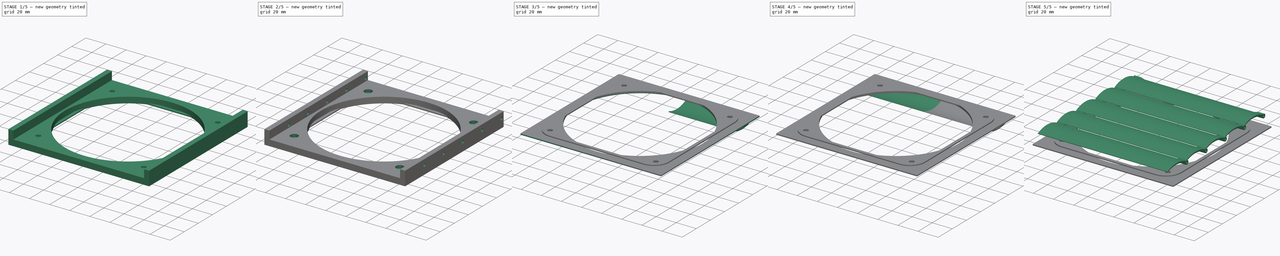
[diagram: build sequence overview — one tinted view per stage of 5, left to right]
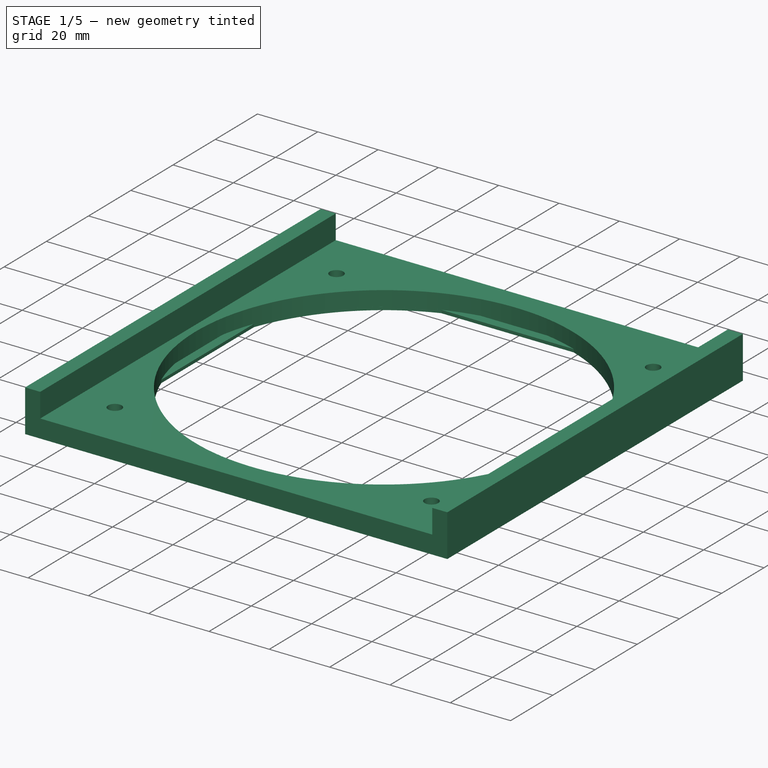
[diagram: stage 1 of 5 — iso view after this stage's code; geometry added in this stage tinted green]
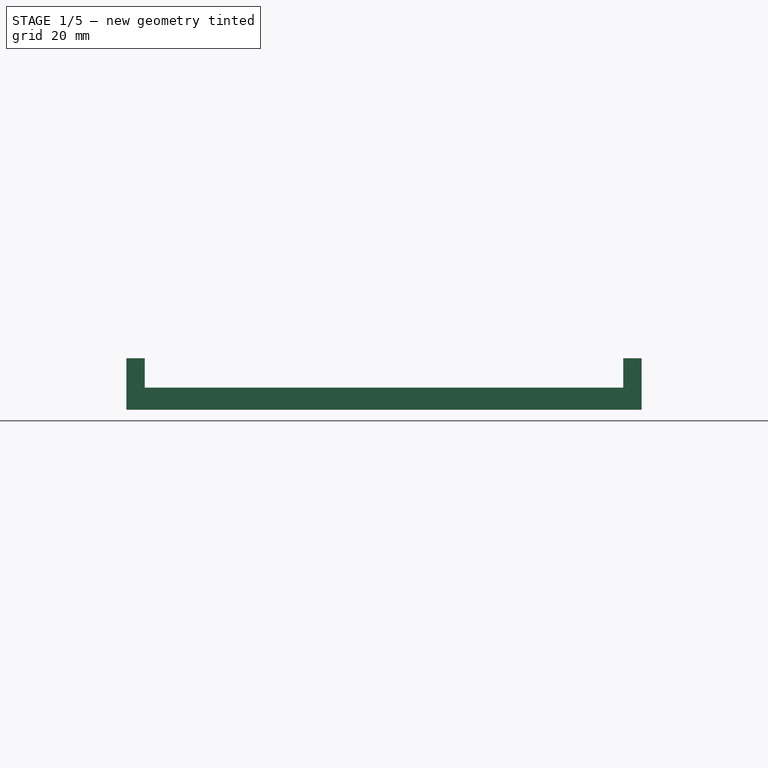
[diagram: stage 1 of 5 — front view after this stage's code; geometry added in this stage tinted green]
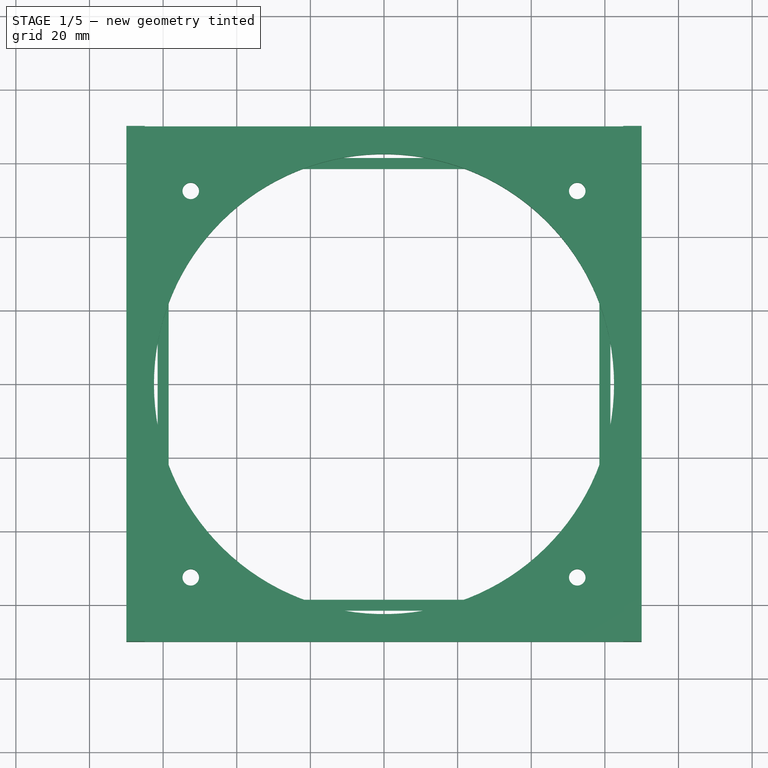
[diagram: stage 1 of 5 — top view after this stage's code; geometry added in this stage tinted green]
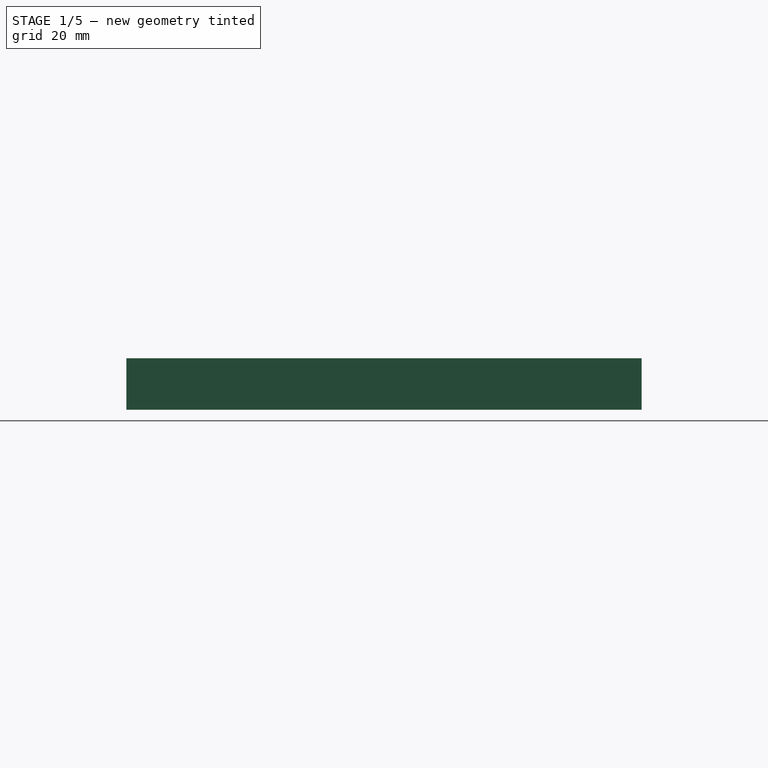
[diagram: stage 1 of 5 — right view after this stage's code; geometry added in this stage tinted green]
FCSTD DOCUMENT  (FreeCAD 0.19R23721 (Git))
Label: fan cover
License: All rights reserved
LicenseURL: http://en.wikipedia.org/wiki/All_rights_reserved
objects: Sketcher::SketchObject×12, PartDesign::Pad×6, PartDesign::ShapeBinder×4, PartDesign::Pocket×4, PartDesign::Body×4, PartDesign::Fillet×2, Spreadsheet::Sheet×1, PartDesign::AdditiveLoft×1, PartDesign::Mirrored×1, Part::FeaturePython×1, PartDesign::LinearPattern×1
note: 48 computed .brp shape members not serialized (recipe doc carries the construction recipe); baked Part::Feature solids carry a one-line shape summary decoded from their .brp

FEATURE [PartDesign::Body] Body001  label="flap"
  Group = -> [Sketch,Pad001,ShapeBinder,Sketch004,Pad002,ShapeBinder001,Sketch005,Sketch006,AdditiveLoft,Mirrored,Sketch007,Pocket,ShapeBinder002,Sketch008,Pocket001]
  Origin = -> Origin001
  Placement = pos=(0,-1.5,7) rot=(0,1,0;3.14159rad)
  Tip = -> Pocket001
  expr: .Placement.Base.y = -<<dim>>.first_wing_y_offset
  expr: .Placement.Base.z = <<dim>>.thickness + <<dim>>.wing_cage_slot_ofs
FEATURE [PartDesign::Pad] Pad
  Direction = (1,1,1)
  Length = 6
  Length2 = 100
  Profile = -> Sketch003
  Refine = true
  Type = 0
  expr: Length = <<dim>>.thickness
FEATURE [Sketcher::SketchObject] Sketch009
  AttachmentOffset = pos=(0,0,6) rot=(0,0,1;0rad)
  ExternalGeometry = -> [Pad]
  FullyConstrained = true
  MapMode = 5
  Placement = pos=(0,0,6) rot=(0,0,1;0rad)
  Support = -> [XY_Plane]
  expr: .AttachmentOffset.Base.z = <<dim>>.thickness
  expr: Constraints[19] = <<dim>>.wing_cage_width
  sketch-geometry (8):
    g0: LineSegment StartX=-70 StartY=70 StartZ=0 EndX=-65 EndY=70 EndZ=0
    g1: LineSegment StartX=-65 StartY=70 StartZ=0 EndX=-65 EndY=-70 EndZ=0
    g2: LineSegment StartX=-65 StartY=-70 StartZ=0 EndX=-70 EndY=-70 EndZ=0
    g3: LineSegment StartX=-70 StartY=-70 StartZ=0 EndX=-70 EndY=70 EndZ=0
    g4: LineSegment StartX=70 StartY=70 StartZ=0 EndX=65 EndY=70 EndZ=0
    g5: LineSegment StartX=65 StartY=70 StartZ=0 EndX=65 EndY=-70 EndZ=0
    g6: LineSegment StartX=65 StartY=-70 StartZ=0 EndX=70 EndY=-70 EndZ=0
    g7: LineSegment StartX=70 StartY=-70 StartZ=0 EndX=70 EndY=70 EndZ=0
  constraints (20):
    c: Coincident(g0,g1)
    c: Coincident(g1,g2)
    c: Coincident(g2,g3)
    c: Coincident(g3,g0)
    c: Horizontal(g0)
    c: Horizontal(g2)
    c: Vertical(g1)
    c: Coincident(g0,g-4)
    c: Coincident(g4,g5)
    c: Coincident(g5,g6)
    c: Coincident(g6,g7)
    c: Coincident(g7,g4)
    c: Horizontal(g4)
    c: Horizontal(g6)
    c: Vertical(g5)
    c: Coincident(g4,g-3)
    c: Coincident(g6,g-3)
    c: Coincident(g2,g-4)
    c: Equal(g4,g0)
    c: DistanceX(g4,g4) = 5
FEATURE [PartDesign::Pad] Pad003
  BaseFeature = -> Pad
  Direction = (1,1,1)
  Length = 8
  Length2 = 100
  Profile = -> Sketch009
  Refine = true
  Type = 0
  expr: Length = <<dim>>.wing_cage_height
FEATURE [PartDesign::Body] Body002  label="frame_washer"
  Group = -> [ShapeBinder003,Sketch012,Pad004]
  Origin = -> Origin002
  Tip = -> Pad004
FEATURE [Sketcher::SketchObject] Sketch013
  FullyConstrained = true
  MapMode = 5
  Support = -> [XY_Plane003]
  expr: Constraints[1] = <<dim>>.fan_d
  expr: Constraints[12] = <<dim>>.fan_frame - <<dim>>.fan_washer_wall
  expr: Constraints[23] = <<dim>>.mount_dist
  expr: Constraints[31] = <<dim>>.mount_d
  expr: Constraints[41] = <<dim>>.fan_frame + <<dim>>.fan_washer_wall
  expr: Constraints[46] = <<dim>>.fan_frame_fillet
  sketch-geometry (41):
    g0: Circle CenterX=0 CenterY=0 CenterZ=0 NormalX=0 NormalY=0 NormalZ=1 AngleXU=0 Radius=62.5
    g1: LineSegment StartX=-58.5 StartY=58.5 StartZ=0 EndX=58.5 EndY=58.5 EndZ=0
    g2: LineSegment StartX=58.5 StartY=58.5 StartZ=0 EndX=58.5 EndY=-58.5 EndZ=0
    g3: LineSegment StartX=58.5 StartY=-58.5 StartZ=0 EndX=-58.5 EndY=-58.5 EndZ=0
    g4: LineSegment StartX=-58.5 StartY=-58.5 StartZ=0 EndX=-58.5 EndY=58.5 EndZ=0
    g5: LineSegment StartX=-52.5 StartY=52.5 StartZ=0 EndX=52.5 EndY=52.5 EndZ=0
    g6: LineSegment StartX=52.5 StartY=52.5 StartZ=0 EndX=52.5 EndY=-52.5 EndZ=0
    g7: LineSegment StartX=52.5 StartY=-52.5 StartZ=0 EndX=-52.5 EndY=-52.5 EndZ=0
    g8: LineSegment StartX=-52.5 StartY=-52.5 StartZ=0 EndX=-52.5 EndY=52.5 EndZ=0
    g9: Circle CenterX=52.5 CenterY=52.5 CenterZ=0 NormalX=0 NormalY=0 NormalZ=1 AngleXU=0 Radius=2.25
    g10: Circle CenterX=-52.5 CenterY=52.5 CenterZ=0 NormalX=0 NormalY=0 NormalZ=1 AngleXU=0 Radius=2.25
    g11: Circle CenterX=-52.5 CenterY=-52.5 CenterZ=0 NormalX=0 NormalY=0 NormalZ=1 AngleXU=0 Radius=2.25
    g12: Circle CenterX=52.5 CenterY=-52.5 CenterZ=0 NormalX=0 NormalY=0 NormalZ=1 AngleXU=0 Radius=2.25
    g13: LineSegment StartX=-61.5 StartY=61.5 StartZ=0 EndX=61.5 EndY=61.5 EndZ=0
    g14: LineSegment StartX=61.5 StartY=61.5 StartZ=0 EndX=61.5 EndY=-61.5 EndZ=0
    g15: LineSegment StartX=61.5 StartY=-61.5 StartZ=0 EndX=-61.5 EndY=-61.5 EndZ=0
    g16: LineSegment StartX=-61.5 StartY=-61.5 StartZ=0 EndX=-61.5 EndY=61.5 EndZ=0
    g17: ArcOfCircle CenterX=46.5 CenterY=46.5 CenterZ=0 NormalX=0 NormalY=0 NormalZ=1 AngleXU=0 Radius=15 StartAngle=0 EndAngle=1.5708
    g18: ArcOfCircle CenterX=46.5 CenterY=-46.5 CenterZ=0 NormalX=0 NormalY=0 NormalZ=1 AngleXU=0 Radius=15 StartAngle=4.71239 EndAngle=6.28319
    g19: ArcOfCircle CenterX=-46.5 CenterY=-46.5 CenterZ=0 NormalX=0 NormalY=0 NormalZ=1 AngleXU=0 Radius=15 StartAngle=3.14159 EndAngle=4.71239
    g20: ArcOfCircle CenterX=-46.5 CenterY=46.5 CenterZ=0 NormalX=0 NormalY=0 NormalZ=1 AngleXU=0 Radius=15 StartAngle=1.5708 EndAngle=3.14159
    g21: GeomPoint X=22 Y=58.5 Z=0
    g22: GeomPoint X=-22 Y=58.5 Z=0
    g23: GeomPoint X=-58.5 Y=22 Z=0
    g24: GeomPoint X=-58.5 Y=-22 Z=0
    g25: GeomPoint X=-22 Y=-58.5 Z=0
    g26: GeomPoint X=22 Y=-58.5 Z=0
    g27: GeomPoint X=58.5 Y=-22 Z=0
    g28: GeomPoint X=58.5 Y=22 Z=0
    g29: ArcOfCircle CenterX=0 CenterY=0 CenterZ=0 NormalX=0 NormalY=0 NormalZ=1 AngleXU=0 Radius=62.5 StartAngle=0.359707 EndAngle=1.21109
    g30: ArcOfCircle CenterX=0 CenterY=0 CenterZ=0 NormalX=0 NormalY=0 NormalZ=1 AngleXU=0 Radius=62.5 StartAngle=5.0721 EndAngle=5.92348
    g31: ArcOfCircle CenterX=0 CenterY=0 CenterZ=0 NormalX=0 NormalY=0 NormalZ=1 AngleXU=0 Radius=62.5 StartAngle=3.5013 EndAngle=4.35268
    g32: ArcOfCircle CenterX=0 CenterY=0 CenterZ=0 NormalX=0 NormalY=0 NormalZ=1 AngleXU=0 Radius=62.5 StartAngle=1.9305 EndAngle=2.78189
    g33: LineSegment StartX=-46.5 StartY=61.5 StartZ=0 EndX=46.5 EndY=61.5 EndZ=0
    g34: LineSegment StartX=-22 StartY=58.5 StartZ=0 EndX=22 EndY=58.5 EndZ=0
    g35: LineSegment StartX=61.5 StartY=46.5 StartZ=0 EndX=61.5 EndY=-46.5 EndZ=0
    g36: LineSegment StartX=58.5 StartY=22 StartZ=0 EndX=58.5 EndY=-22 EndZ=0
    g37: LineSegment StartX=46.5 StartY=-61.5 StartZ=0 EndX=-46.5 EndY=-61.5 EndZ=0
    g38: LineSegment StartX=22 StartY=-58.5 StartZ=0 EndX=-22 EndY=-58.5 EndZ=0
    g39: LineSegment StartX=-61.5 StartY=-46.5 StartZ=0 EndX=-61.5 EndY=46.5 EndZ=0
    g40: LineSegment StartX=-58.5 StartY=22 StartZ=0 EndX=-58.5 EndY=-22 EndZ=0
  constraints (105):
    c: Coincident(g0,g-1)
    c: Diameter(g0) = 125
    c: Coincident(g1,g2)
    c: Coincident(g2,g3)
    c: Coincident(g3,g4)
    c: Coincident(g4,g1)
    c: Horizontal(g1)
    c: Horizontal(g3)
    c: Vertical(g2)
    c: Vertical(g4)
    c: Symmetric(g2,g1,g-1)
    c: Equal(g1,g2)
    c: DistanceX(g1,g1) = 117
    c: Coincident(g5,g6)
    c: Coincident(g6,g7)
    c: Coincident(g7,g8)
    c: Coincident(g8,g5)
    c: Horizontal(g5)
    c: Horizontal(g7)
    c: Vertical(g6)
    c: Vertical(g8)
    c: Equal(g7,g6)
    c: Symmetric(g5,g6,g-1)
    c: DistanceX(g5,g5) = 105
    c: Coincident(g9,g5)
    c: Coincident(g10,g5)
    c: Coincident(g11,g7)
    c: Coincident(g12,g6)
    c: Equal(g12,g11)
    c: Equal(g11,g10)
    c: Equal(g10,g9)
    c: Diameter(g9) = 4.5
    c: Coincident(g13,g14)
    c: Coincident(g14,g15)
    c: Coincident(g15,g16)
    c: Coincident(g16,g13)
    c: Horizontal(g13)
    c: Horizontal(g15)
    c: Vertical(g14)
    c: Vertical(g16)
    c: Equal(g15,g14)
    c: DistanceX(g13,g13) = 123
    c: PointOnObject(g17,g13)
    c: PointOnObject(g17,g14)
    c: Vertical(g17,g17)
    c: Horizontal(g17,g17)
    c: Radius(g17) = 15
    c: PointOnObject(g18,g14)
    c: PointOnObject(g18,g15)
    c: PointOnObject(g19,g15)
    c: PointOnObject(g19,g16)
    c: PointOnObject(g20,g13)
    c: PointOnObject(g20,g16)
    c: Symmetric(g13,g14,g-1)
    c: Horizontal(g18,g18)
    c: Horizontal(g19,g19)
    c: Horizontal(g20,g20)
    c: Vertical(g20,g20)
    c: Vertical(g19,g19)
    c: Vertical(g18,g18)
    c: Equal(g17,g20)
    c: Equal(g20,g19)
    c: Equal(g19,g18)
    c: PointOnObject(g21,g1)
    c: PointOnObject(g22,g1)
    c: PointOnObject(g21,g0)
    c: PointOnObject(g22,g0)
    c: PointOnObject(g23,g4)
    c: PointOnObject(g24,g4)
    c: PointOnObject(g25,g3)
    c: PointOnObject(g26,g3)
    c: PointOnObject(g27,g2)
    c: PointOnObject(g28,g2)
    c: PointOnObject(g27,g0)
    c: PointOnObject(g26,g0)
    c: PointOnObject(g25,g0)
    c: Coincident(g29,g-1)
    c: Coincident(g29,g21)
    c: Coincident(g29,g28)
    c: Coincident(g30,g29)
    c: Coincident(g30,g27)
    c: Coincident(g30,g26)
    c: Coincident(g31,g29)
    c: Coincident(g31,g25)
    c: Coincident(g31,g24)
    c: Coincident(g32,g29)
    c: Coincident(g32,g23)
    c: Coincident(g32,g22)
    c: Coincident(g33,g20)
    c: Coincident(g33,g17)
    c: Coincident(g34,g32)
    c: Coincident(g34,g29)
    c: Coincident(g35,g17)
    c: Coincident(g35,g18)
    c: Coincident(g36,g29)
    c: Coincident(g36,g30)
    c: Coincident(g37,g18)
    c: Coincident(g37,g19)
    c: Coincident(g38,g30)
    c: Coincident(g38,g31)
    c: Horizontal(g38)
    c: Coincident(g39,g19)
    c: Coincident(g39,g20)
    c: Coincident(g40,g32)
    c: Coincident(g40,g31)
FEATURE [PartDesign::Pad] Pad005
  Direction = (1,1,1)
  Length = 1
  Length2 = 100
  Profile = -> Sketch013
  Refine = true
  Type = 0
  expr: Length = <<dim>>.washer_thickness
FEATURE [PartDesign::Body] Body003  label="fan_washer"
  Group = -> [Sketch013,Pad005]
  Origin = -> Origin003
  Tip = -> Pad005
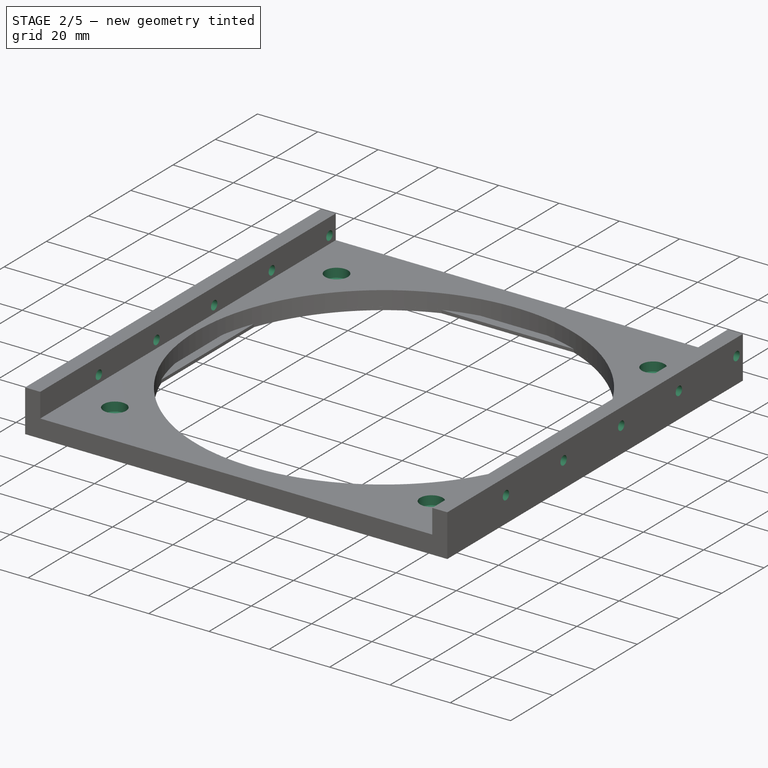
[diagram: stage 2 of 5 — iso view after this stage's code; geometry added in this stage tinted green]
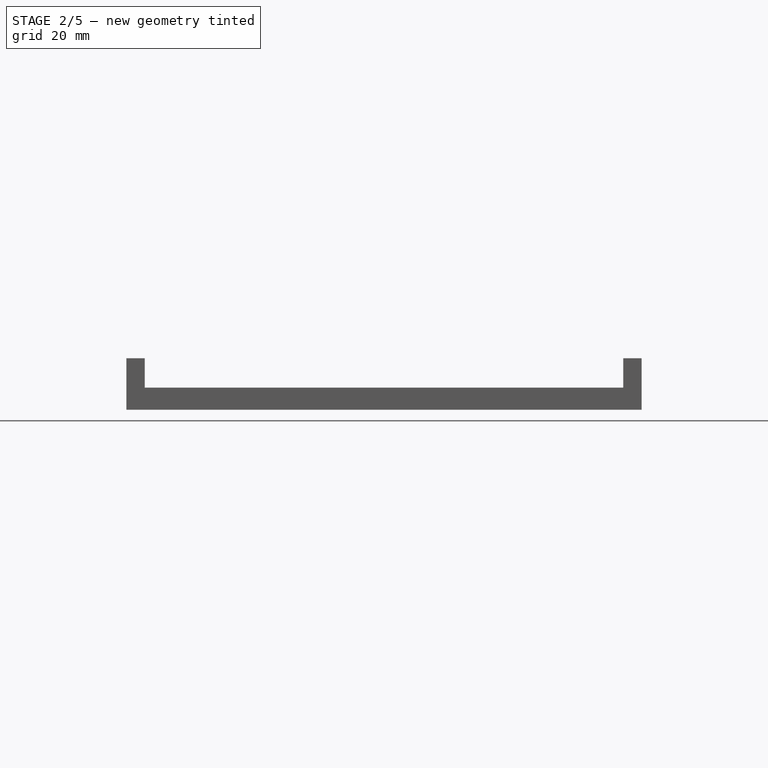
[diagram: stage 2 of 5 — front view after this stage's code; geometry added in this stage tinted green]
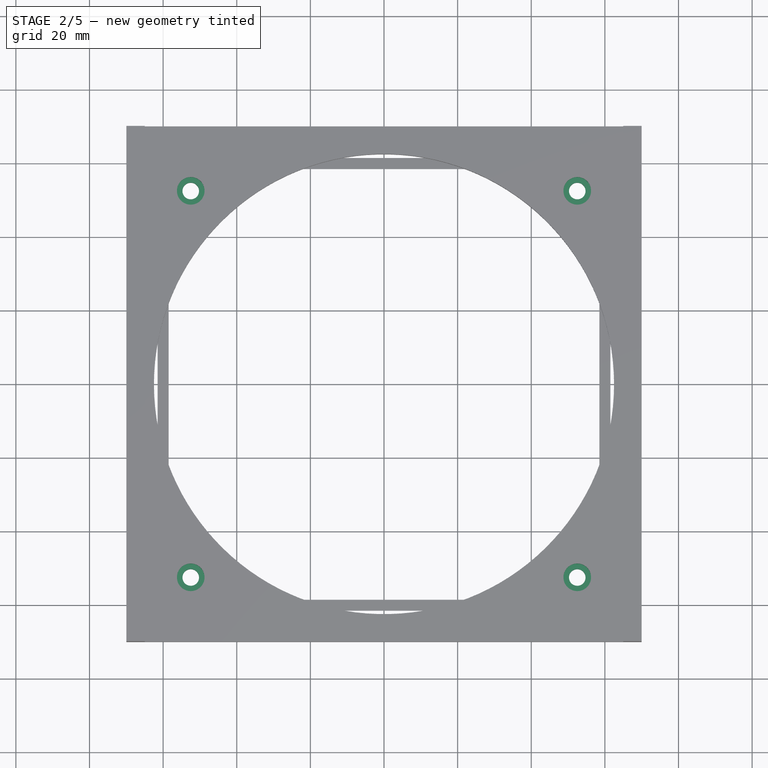
[diagram: stage 2 of 5 — top view after this stage's code; geometry added in this stage tinted green]
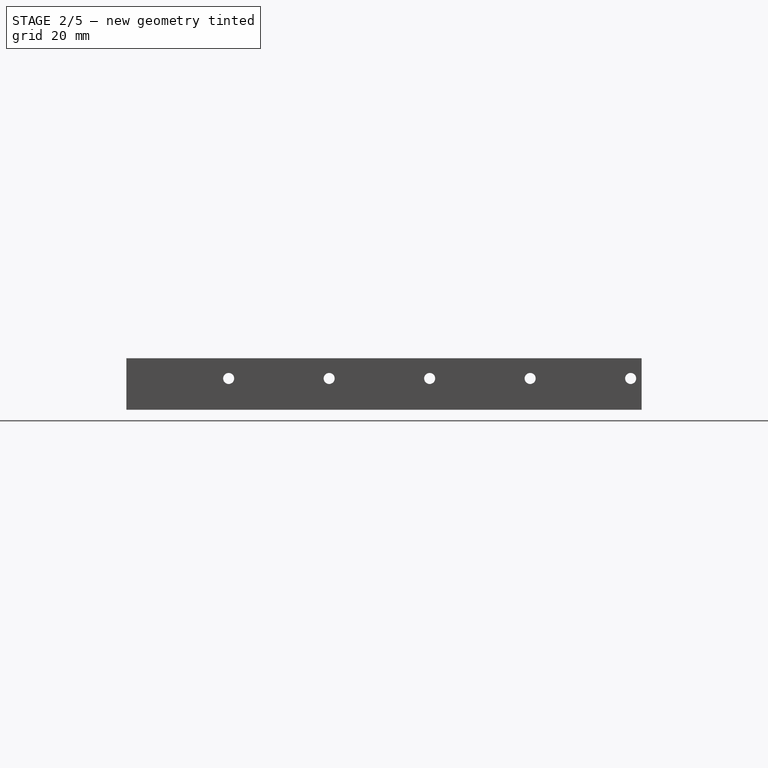
[diagram: stage 2 of 5 — right view after this stage's code; geometry added in this stage tinted green]
FEATURE [Sketcher::SketchObject] Sketch010
  AttachmentOffset = pos=(0,0,6) rot=(0,0,1;0rad)
  ExternalGeometry = -> [Pad003]
  FullyConstrained = true
  MapMode = 5
  Placement = pos=(0,0,6) rot=(0,0,1;0rad)
  Support = -> [XY_Plane]
  expr: .AttachmentOffset.Base.z = <<dim>>.thickness
  expr: Constraints[4] = <<dim>>.mount_countersink_d
  sketch-geometry (4):
    g0: Circle CenterX=52.5 CenterY=52.5 CenterZ=0 NormalX=0 NormalY=0 NormalZ=1 AngleXU=0 Radius=3.75
    g1: Circle CenterX=-52.5 CenterY=52.5 CenterZ=0 NormalX=0 NormalY=0 NormalZ=1 AngleXU=0 Radius=3.75
    g2: Circle CenterX=-52.5 CenterY=-52.5 CenterZ=0 NormalX=0 NormalY=0 NormalZ=1 AngleXU=0 Radius=3.75
    g3: Circle CenterX=52.5 CenterY=-52.5 CenterZ=0 NormalX=0 NormalY=0 NormalZ=1 AngleXU=0 Radius=3.75
  constraints (8):
    c: Coincident(g0,g-3)
    c: Coincident(g1,g-6)
    c: Coincident(g2,g-5)
    c: Coincident(g3,g-4)
    c: Diameter(g0) = 7.5
    c: Equal(g0,g1)
    c: Equal(g1,g2)
    c: Equal(g2,g3)
FEATURE [PartDesign::Pocket] Pocket002
  BaseFeature = -> Pad003
  Length = 3
  Length2 = 100
  Profile = -> Sketch010
  Refine = true
  Type = 0
  expr: Length = <<dim>>.mount_countersink_h
FEATURE [Sketcher::SketchObject] Sketch011
  ExternalGeometry = -> [Pocket002]
  FullyConstrained = true
  MapMode = 5
  Placement = pos=(0,0,0) rot=(0.57735,0.57735,0.57735;2.0944rad)
  Support = -> [YZ_Plane]
  expr: Constraints[0] = <<dim>>.wing_cage_slot_d
  expr: Constraints[1] = <<dim>>.wing_cage_slot_d / 2 + <<dim>>.wing_cage_slot_ofs
  expr: Constraints[2] = <<dim>>.wing_cage_slot_d / 2 + <<dim>>.first_wing_y_offset
  sketch-geometry (1):
    g0: Circle CenterX=67 CenterY=8.5 CenterZ=0 NormalX=0 NormalY=0 NormalZ=1 AngleXU=0 Radius=1.5
  constraints (3):
    c: Diameter(g0) = 3
    c: DistanceY(g-3,g0) = 2.5
    c: DistanceX(g0,g-3) = 3
FEATURE [PartDesign::Pocket] Pocket003
  BaseFeature = -> Pocket002
  Length = 5
  Length2 = 100
  Midplane = true
  Profile = -> Sketch011
  Refine = true
  Type = 1
FEATURE [PartDesign::LinearPattern] LinearPattern
  BaseFeature = -> Pocket003
  Direction = -> Sketch011 [H_Axis]
  Length = 109.2
  Occurrences = 5
  Originals = -> [Pocket003]
  Refine = true
  Reversed = true
  expr: Occurrences = <<dim>>.num_wings
  expr: Length = (<<dim>>.num_wings - 1) * <<dim>>.wing_h
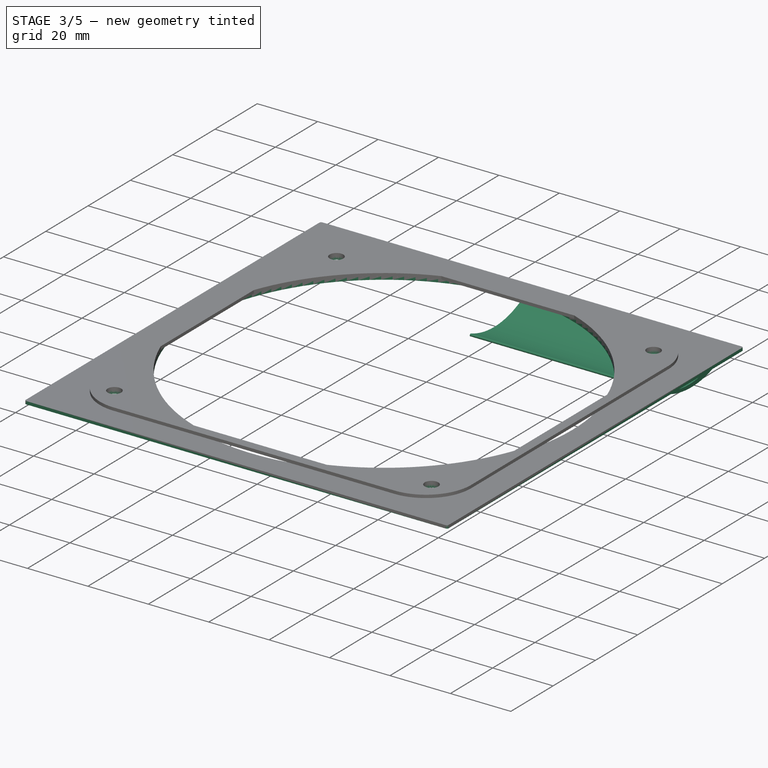
[diagram: stage 3 of 5 — iso view after this stage's code; geometry added in this stage tinted green]
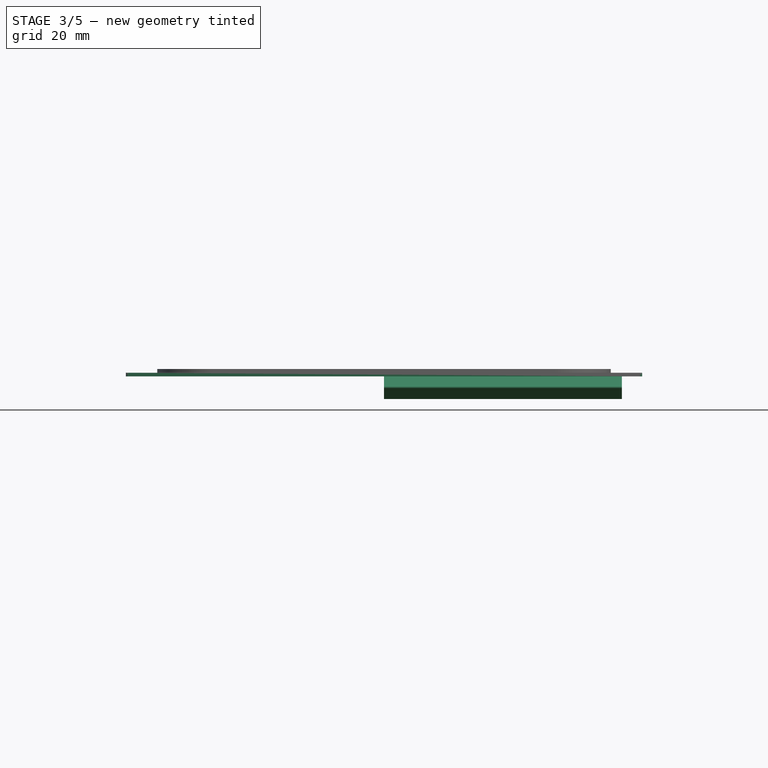
[diagram: stage 3 of 5 — front view after this stage's code; geometry added in this stage tinted green]
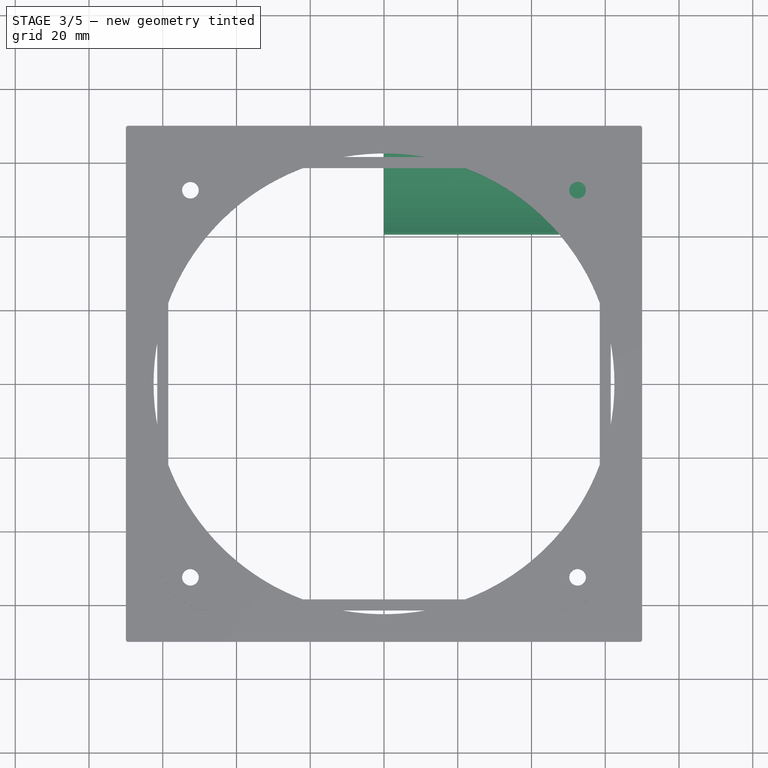
[diagram: stage 3 of 5 — top view after this stage's code; geometry added in this stage tinted green]
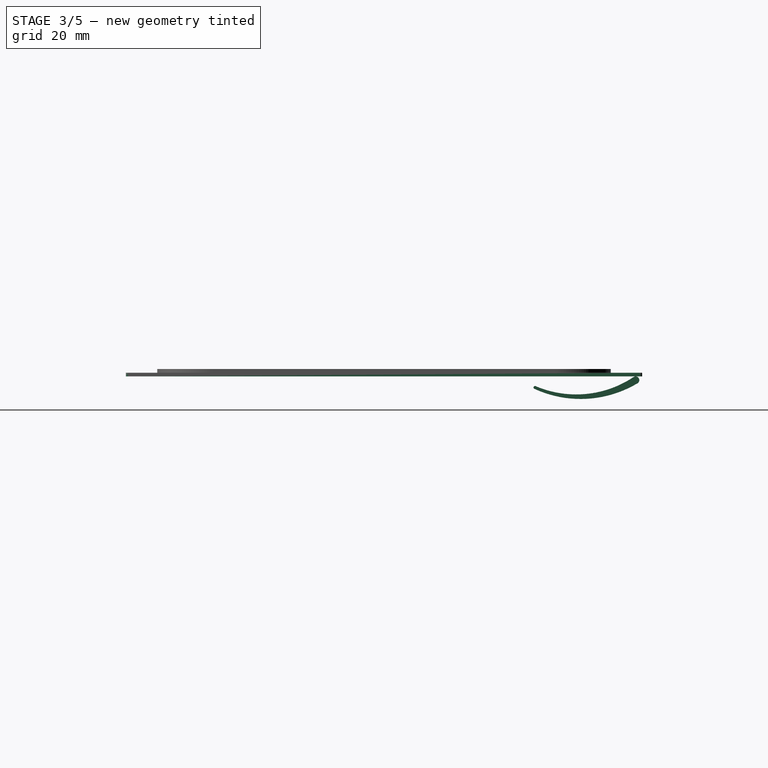
[diagram: stage 3 of 5 — right view after this stage's code; geometry added in this stage tinted green]
FEATURE [Spreadsheet::Sheet] Spreadsheet  label="dim"
  cells = A2=fan_frame; B2(fan_frame)=120; A3=fan_frame_fillet; B3(fan_frame_fillet)=15; A5=size; B5(size)==fan_d + 15; A6=size_x; B6(size_x)==fan_d + 5; A7=thickness; B7(thickness)=6; A8=mount_dist; B8(mount_dist)=105; A9=mount_d; B9(mount_d)=4.5; A10=mount_countersink_d; B10(mount_countersink_d)=7.5; A11=mount_countersink_h; B11(mount_countersink_h)=3; A12=fan_d; B12(fan_d)=125; A13=fan_fillet; B13(fan_fillet)=2; A15=num_wings; B15(num_wings)=5; A16=wing_area; B16(wing_area)==size - wing_hinge_d / 2 - first_wing_y_offset; C16=Y only!; A17=wing_area_x; B17(wing_area_x)==size_x - 2 * wing_cage_slack; A18=wing_h; B18(wing_h)==wing_area / num_wings; A20=wing_profile_d1; B20(wing_profile_d1)=2; A21=wing_profile_d2; B21(wing_profile_d2)=0.8; A22=wing_profile_r1; B22(wing_profile_r1)=30; A23=wing_profile_r2; B23(wing_profile_r2)=28; A24=wing_hinge_d; B24(wing_hinge_d)=4; A25=wing_hinge_h; B25(wing_hinge_h)=6; A26=wing_hinge_h2; B26(wing_hinge_h2)=4; A27=wing_filament_hole_d; B27(wing_filament_hole_d)=2.1; A28=wing_filament_hole_h; B28(wing_filament_hole_h)=6; A30=wing_cage_slack; B30(wing_cage_slack)=0.5; A31=wing_cage_width; B31(wing_cage_width)=5; A32=wing_cage_height; B32(wing_cage_height)=8; A33=wing_cage_slot_d; B33(wing_cage_slot_d)=3; A34=wing_cage_slot_ofs; B34(wing_cage_slot_ofs)=1; A35=first_wing_y_offset; B35(first_wing_y_offset)=1.5; A36=cage_fillet; B36(cage_fillet)=0.6; A38=washer_thickness; B38(washer_thickness)=1; A39=fan_washer_wall; B39(fan_washer_wall)=3
FEATURE [Sketcher::SketchObject] Sketch003
  FullyConstrained = true
  MapMode = 5
  Support = -> [XY_Plane]
  expr: Constraints[10] = <<dim>>.mount_dist
  expr: Constraints[19] = <<dim>>.mount_d
  expr: Constraints[20] = <<dim>>.fan_d
  expr: Constraints[30] = <<dim>>.size_x + 2 * <<dim>>.wing_cage_width
  expr: Constraints[31] = <<dim>>.size
  sketch-geometry (13):
    g0: LineSegment StartX=-52.5 StartY=52.5 StartZ=0 EndX=52.5 EndY=52.5 EndZ=0
    g1: LineSegment StartX=52.5 StartY=52.5 StartZ=0 EndX=52.5 EndY=-52.5 EndZ=0
    g2: LineSegment StartX=52.5 StartY=-52.5 StartZ=0 EndX=-52.5 EndY=-52.5 EndZ=0
    g3: LineSegment StartX=-52.5 StartY=-52.5 StartZ=0 EndX=-52.5 EndY=52.5 EndZ=0
    g4: Circle CenterX=52.5 CenterY=52.5 CenterZ=0 NormalX=0 NormalY=0 NormalZ=1 AngleXU=0 Radius=2.25
    g5: Circle CenterX=52.5 CenterY=-52.5 CenterZ=0 NormalX=0 NormalY=0 NormalZ=1 AngleXU=0 Radius=2.25
    g6: Circle CenterX=-52.5 CenterY=-52.5 CenterZ=0 NormalX=0 NormalY=0 NormalZ=1 AngleXU=0 Radius=2.25
    g7: Circle CenterX=-52.5 CenterY=52.5 CenterZ=0 NormalX=0 NormalY=0 NormalZ=1 AngleXU=0 Radius=2.25
    g8: Circle CenterX=-1e-16 CenterY=0 CenterZ=0 NormalX=0 NormalY=0 NormalZ=1 AngleXU=0 Radius=62.5
    g9: LineSegment StartX=-70 StartY=70 StartZ=0 EndX=70 EndY=70 EndZ=0
    g10: LineSegment StartX=70 StartY=70 StartZ=0 EndX=70 EndY=-70 EndZ=0
    g11: LineSegment StartX=70 StartY=-70 StartZ=0 EndX=-70 EndY=-70 EndZ=0
    g12: LineSegment StartX=-70 StartY=-70 StartZ=0 EndX=-70 EndY=70 EndZ=0
  constraints (32):
    c: Coincident(g0,g1)
    c: Coincident(g1,g2)
    c: Coincident(g2,g3)
    c: Coincident(g3,g0)
    c: Horizontal(g0)
    c: Horizontal(g2)
    c: Vertical(g1)
    c: Vertical(g3)
    c: Symmetric(g1,g0,g-1)
    c: Equal(g0,g1)
    c: DistanceX(g0,g0) = 105
    c: Coincident(g4,g0)
    c: Coincident(g5,g1)
    c: Coincident(g6,g2)
    c: Coincident(g7,g0)
    c: Equal(g4,g7)
    c: Equal(g7,g6)
    c: Equal(g6,g5)
    c: Coincident(g8,g-1)
    c: Diameter(g4) = 4.5
    c: Diameter(g8) = 125
    c: Coincident(g9,g10)
    c: Coincident(g10,g11)
    c: Coincident(g11,g12)
    c: Coincident(g12,g9)
    c: Horizontal(g9)
    c: Horizontal(g11)
    c: Vertical(g10)
    c: Vertical(g12)
    c: Symmetric(g10,g9,g8)
    c: DistanceX(g9,g9) = 140
    c: DistanceY(g10,g10) = 140
FEATURE [Sketcher::SketchObject] Sketch
  AttachmentOffset = pos=(68.25,0,0) rot=(0,0,1;0rad)
  FullyConstrained = true
  MapMode = 5
  Placement = pos=(1.52e-14,68.25,-1.52e-14) rot=(0.57735,0.57735,0.57735;2.0944rad)
  Support = -> [YZ_Plane001]
  expr: Constraints[1] = <<dim>>.wing_profile_d1
  expr: Constraints[12] = <<dim>>.wing_profile_r1
  expr: Constraints[4] = <<dim>>.wing_profile_d1
  expr: Constraints[2] = <<dim>>.wing_profile_d1
  expr: Constraints[5] = <<dim>>.wing_profile_d2
  expr: Constraints[10] = <<dim>>.wing_h
  expr: Constraints[11] = <<dim>>.wing_profile_r2
  expr: .AttachmentOffset.Base.x = <<dim>>.wing_area / 2
  sketch-geometry (4):
    g0: ArcOfCircle CenterX=0 CenterY=-2 CenterZ=0 NormalX=0 NormalY=0 NormalZ=1 AngleXU=0 Radius=1 StartAngle=5.25207 EndAngle=8.44339
    g1: ArcOfCircle CenterX=-27.3 CenterY=-4 CenterZ=0 NormalX=0 NormalY=0 NormalZ=1 AngleXU=0 Radius=0.4 StartAngle=1.16619 EndAngle=4.28021
    g2: ArcOfCircle CenterX=-16.1201 CenterY=22.1069 CenterZ=0 NormalX=0 NormalY=0 NormalZ=1 AngleXU=0 Radius=28 StartAngle=4.30778 EndAngle=5.30179
    g3: ArcOfCircle CenterX=-14.9019 CenterY=22.8784 CenterZ=0 NormalX=0 NormalY=0 NormalZ=1 AngleXU=0 Radius=30 StartAngle=4.28021 EndAngle=5.25207
  constraints (13):
    c: PointOnObject(g0,g-2)
    c: DistanceY(g0,g-1) = 2
    c: Diameter(g0) = 2
    c: Coincident(g2,g1)
    c: DistanceY(g1,g0) = 2
    c: Diameter(g1) = 0.8
    c: Tangent(g3,g1) = -1.5708
    c: Tangent(g1,g2,g1) = 1.5708
    c: Tangent(g3,g0) = -1.5708
    c: Tangent(g2,g0) = 1.5708
    c: DistanceX(g1,g0) = 27.3
    c: Radius(g2) = 28
    c: Radius(g3) = 30
FEATURE [PartDesign::Pad] Pad001
  Direction = (1,1,1)
  Length = 64.5
  Length2 = 100
  Placement = pos=(0,0,0) rot=(0.57735,0.57735,0.57735;2.0944rad)
  Profile = -> Sketch
  Type = 0
  expr: Length = <<dim>>.wing_area_x / 2
FEATURE [PartDesign::Fillet] Fillet
  Base = -> LinearPattern [Edge37]
  BaseFeature = -> LinearPattern
  Radius = 2
  Refine = true
  SupportTransform = false
  expr: Radius = <<dim>>.fan_fillet
FEATURE [PartDesign::Fillet] Fillet001
  Base = -> Fillet [Edge35,Edge29,Edge28,Edge26,Edge27,Edge15,Edge16,Edge38,Edge39,Edge40,Edge23,Edge22,Edge24,Edge37,Edge36,Edge25]
  BaseFeature = -> Fillet
  Radius = 0.6
  Refine = true
  SupportTransform = false
  expr: Radius = <<dim>>.cage_fillet
FEATURE [PartDesign::Body] Body  label="frame"
  Group = -> [Sketch003,Pad,Sketch009,Pad003,Sketch010,Pocket002,Sketch011,Pocket003,LinearPattern,Fillet,Fillet001]
  Origin = -> Origin
  Tip = -> Fillet001
FEATURE [PartDesign::ShapeBinder] ShapeBinder003
  Support = -> [Fillet001]
  TraceSupport = false
FEATURE [Sketcher::SketchObject] Sketch012
  ExternalGeometry = -> [ShapeBinder003]
  FullyConstrained = true
  MapMode = 5
  Placement = pos=(0,0,0) rot=(1,0,0;3.14159rad)
  Support = -> [ShapeBinder003]
  sketch-geometry (13):
    g0: Circle CenterX=0 CenterY=0 CenterZ=0 NormalX=0 NormalY=0 NormalZ=1 AngleXU=0 Radius=62.5
    g1: Circle CenterX=52.5 CenterY=52.5 CenterZ=0 NormalX=0 NormalY=0 NormalZ=1 AngleXU=0 Radius=2.25
    g2: ArcOfCircle CenterX=69.4 CenterY=69.4 CenterZ=0 NormalX=0 NormalY=0 NormalZ=1 AngleXU=0 Radius=0.6 StartAngle=0 EndAngle=1.5708
    g3: ArcOfCircle CenterX=-69.4 CenterY=69.4 CenterZ=0 NormalX=0 NormalY=0 NormalZ=1 AngleXU=0 Radius=0.6 StartAngle=1.5708 EndAngle=3.14159
    g4: Circle CenterX=-52.5 CenterY=52.5 CenterZ=0 NormalX=0 NormalY=0 NormalZ=1 AngleXU=0 Radius=2.25
    g5: Circle CenterX=-52.5 CenterY=-52.5 CenterZ=0 NormalX=0 NormalY=0 NormalZ=1 AngleXU=0 Radius=2.25
    g6: ArcOfCircle CenterX=-69.4 CenterY=-69.4 CenterZ=0 NormalX=0 NormalY=0 NormalZ=1 AngleXU=0 Radius=0.6 StartAngle=3.14159 EndAngle=4.71239
    g7: ArcOfCircle CenterX=69.4 CenterY=-69.4 CenterZ=0 NormalX=0 NormalY=0 NormalZ=1 AngleXU=0 Radius=0.6 StartAngle=4.71239 EndAngle=6.28319
    g8: Circle CenterX=52.5 CenterY=-52.5 CenterZ=0 NormalX=0 NormalY=0 NormalZ=1 AngleXU=0 Radius=2.25
    g9: LineSegment StartX=70 StartY=69.4 StartZ=0 EndX=70 EndY=-69.4 EndZ=0
    g10: LineSegment StartX=-70 StartY=-69.4 StartZ=0 EndX=-70 EndY=69.4 EndZ=0
    g11: LineSegment StartX=-69.4 StartY=-70 StartZ=0 EndX=69.4 EndY=-70 EndZ=0
    g12: LineSegment StartX=69.4 StartY=70 StartZ=0 EndX=-69.4 EndY=70 EndZ=0
  constraints (30):
    c: Coincident(g0,g-1)
    c: Tangent(g0,g-4)
    c: Coincident(g1,g-5)
    c: Coincident(g2,g-12)
    c: Coincident(g2,g-12)
    c: Coincident(g2,g-12)
    c: Coincident(g3,g-13)
    c: Coincident(g3,g-13)
    c: Coincident(g3,g-13)
    c: Coincident(g4,g-6)
    c: Coincident(g5,g-7)
    c: Coincident(g6,g-14)
    c: Coincident(g6,g-14)
    c: Coincident(g6,g-14)
    c: Coincident(g7,g-15)
    c: Coincident(g7,g-15)
    c: Coincident(g7,g-15)
    c: Coincident(g8,g-8)
    c: Equal(g1,g4)
    c: Equal(g4,g5)
    c: Equal(g5,g8)
    c: Equal(g8,g-8)
    c: Coincident(g9,g2)
    c: Coincident(g9,g7)
    c: Coincident(g10,g6)
    c: Coincident(g10,g3)
    c: Coincident(g11,g6)
    c: Coincident(g11,g7)
    c: Coincident(g12,g2)
    c: Coincident(g12,g3)
FEATURE [PartDesign::Pad] Pad004
  Direction = (1,1,1)
  Length = 1
  Length2 = 100
  Profile = -> Sketch012
  Refine = true
  Type = 0
  expr: Length = <<dim>>.washer_thickness
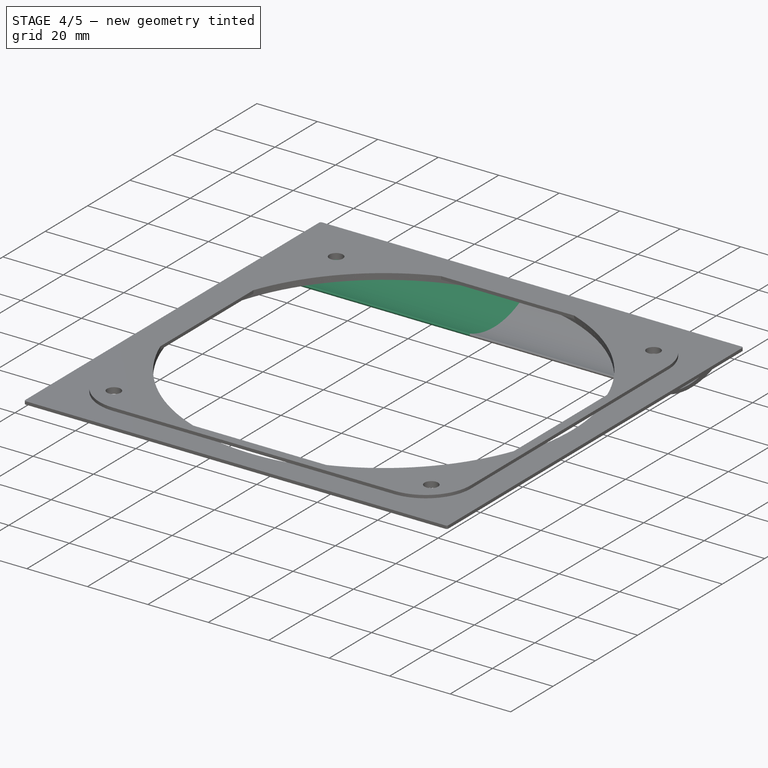
[diagram: stage 4 of 5 — iso view after this stage's code; geometry added in this stage tinted green]
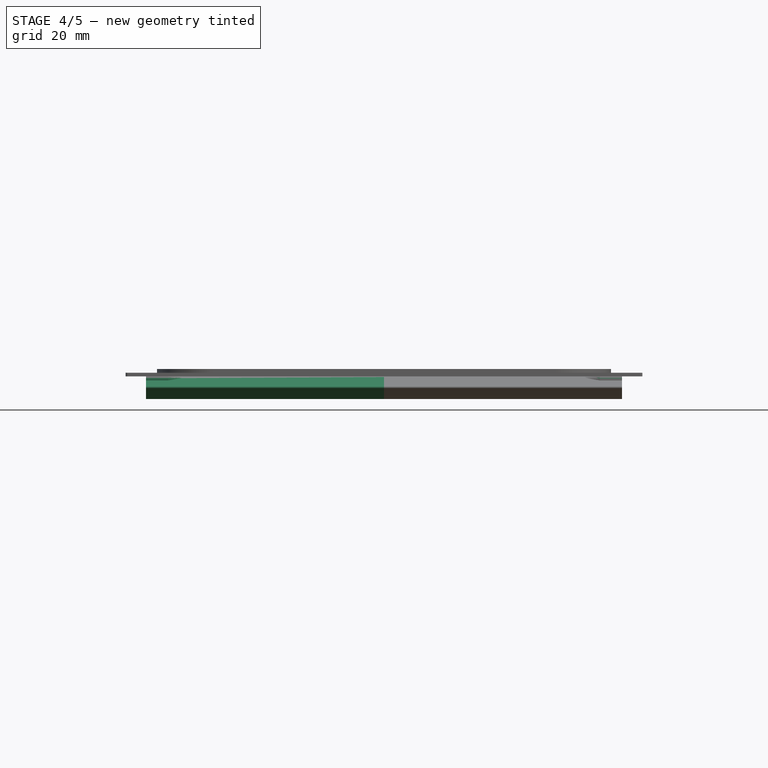
[diagram: stage 4 of 5 — front view after this stage's code; geometry added in this stage tinted green]
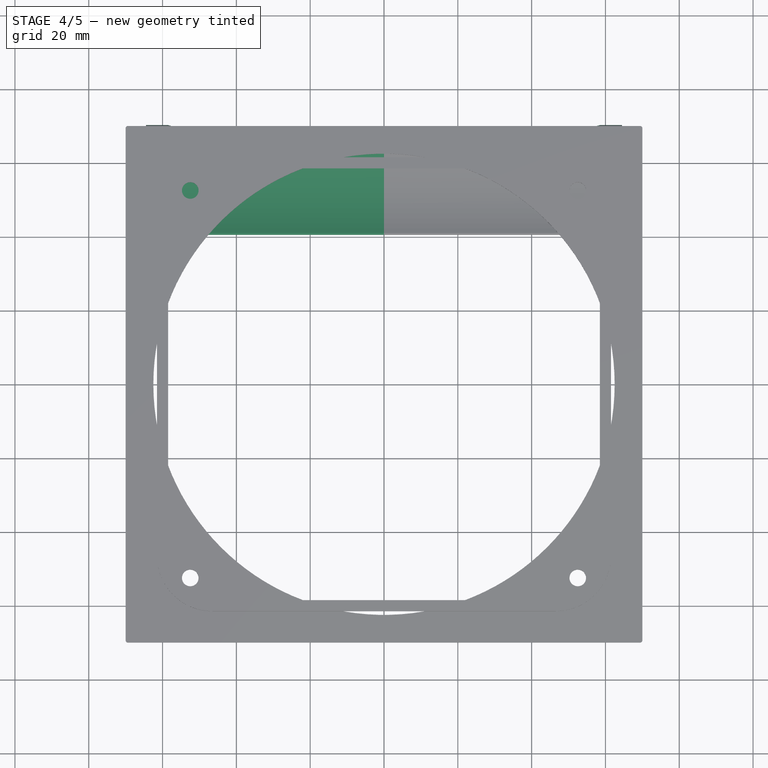
[diagram: stage 4 of 5 — top view after this stage's code; geometry added in this stage tinted green]
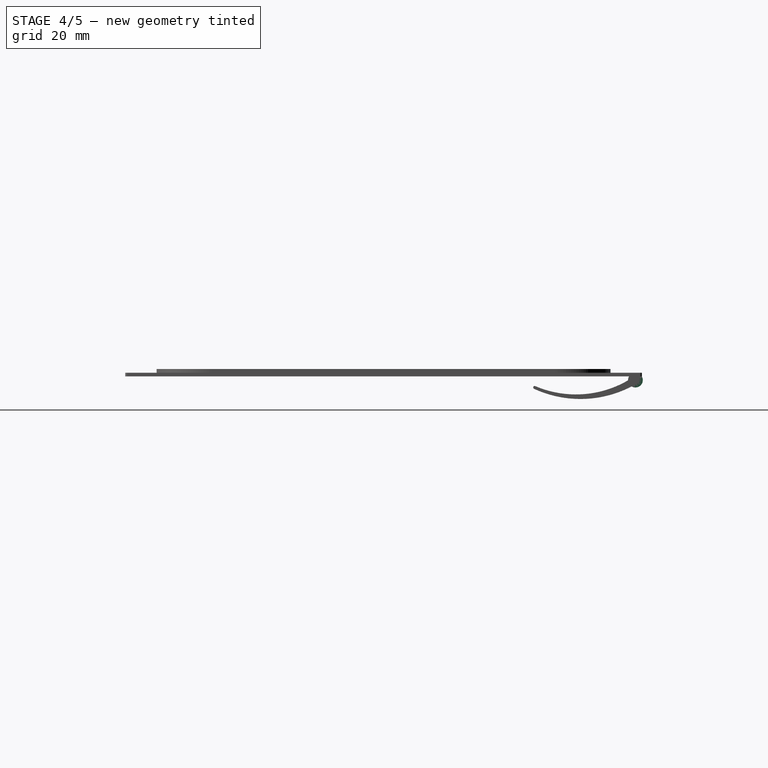
[diagram: stage 4 of 5 — right view after this stage's code; geometry added in this stage tinted green]
FEATURE [PartDesign::ShapeBinder] ShapeBinder
  Placement = pos=(64.5,-2.86e-14,2.51e-14) rot=(0,0,1;0rad)
  Support = -> [Pad001]
  TraceSupport = false
FEATURE [Sketcher::SketchObject] Sketch004
  ExternalGeometry = -> [ShapeBinder]
  FullyConstrained = true
  MapMode = 5
  Placement = pos=(64.5,-2.86e-14,2.51e-14) rot=(0.57735,0.57735,0.57735;2.0944rad)
  Support = -> [ShapeBinder]
  expr: Constraints[1] = <<dim>>.wing_hinge_d
  sketch-geometry (1):
    g0: Circle CenterX=68.25 CenterY=-2 CenterZ=0 NormalX=0 NormalY=0 NormalZ=1 AngleXU=0 Radius=2
  constraints (2):
    c: Coincident(g0,g-3)
    c: Diameter(g0) = 4
FEATURE [PartDesign::Pad] Pad002
  BaseFeature = -> Pad001
  Direction = (1,1,1)
  Length = 6
  Length2 = 100
  Placement = pos=(0,0,0) rot=(0.57735,0.57735,0.57735;2.0944rad)
  Profile = -> Sketch004
  Reversed = true
  Type = 0
  expr: Length = <<dim>>.wing_hinge_h
FEATURE [PartDesign::ShapeBinder] ShapeBinder001
  Placement = pos=(0,0,0) rot=(0.57735,0.57735,0.57735;2.0944rad)
  Support = -> [Pad002]
  TraceSupport = false
FEATURE [Sketcher::SketchObject] Sketch005
  ExternalGeometry = -> [Pad002]
  FullyConstrained = true
  MapMode = 5
  Placement = pos=(58.5,-1.3e-14,0) rot=(-0.57735,-0.57735,0.57735;2.0944rad)
  Support = -> [ShapeBinder001]
  sketch-geometry (1):
    g0: Circle CenterX=68.25 CenterY=2 CenterZ=0 NormalX=0 NormalY=0 NormalZ=1 AngleXU=0 Radius=2
  constraints (2):
    c: Coincident(g0,g-3)
    c: PointOnObject(g-3,g0)
FEATURE [Sketcher::SketchObject] Sketch006
  AttachmentOffset = pos=(0,0,4) rot=(0,0,1;0rad)
  ExternalGeometry = -> [Pad002]
  FullyConstrained = true
  MapMode = 5
  Placement = pos=(54.5,-1.25e-14,-4e-16) rot=(-0.57735,-0.57735,0.57735;2.0944rad)
  Support = -> [ShapeBinder001]
  expr: .AttachmentOffset.Base.z = <<dim>>.wing_hinge_h2
  sketch-geometry (1):
    g0: Circle CenterX=68.25 CenterY=2 CenterZ=0 NormalX=0 NormalY=0 NormalZ=1 AngleXU=0 Radius=1
  constraints (2):
    c: Coincident(g0,g-4)
    c: PointOnObject(g-4,g0)
FEATURE [PartDesign::AdditiveLoft] AdditiveLoft
  BaseFeature = -> Pad002
  Closed = false
  Placement = pos=(0,0,0) rot=(0.57735,0.57735,0.57735;2.0944rad)
  Profile = -> Sketch005
  Ruled = false
  Sections = -> [Sketch006]
FEATURE [PartDesign::Mirrored] Mirrored
  BaseFeature = -> AdditiveLoft
  MirrorPlane = -> YZ_Plane001
  Originals = -> [Pad001,Pad002,AdditiveLoft]
  Placement = pos=(0,0,0) rot=(0.57735,0.57735,0.57735;2.0944rad)
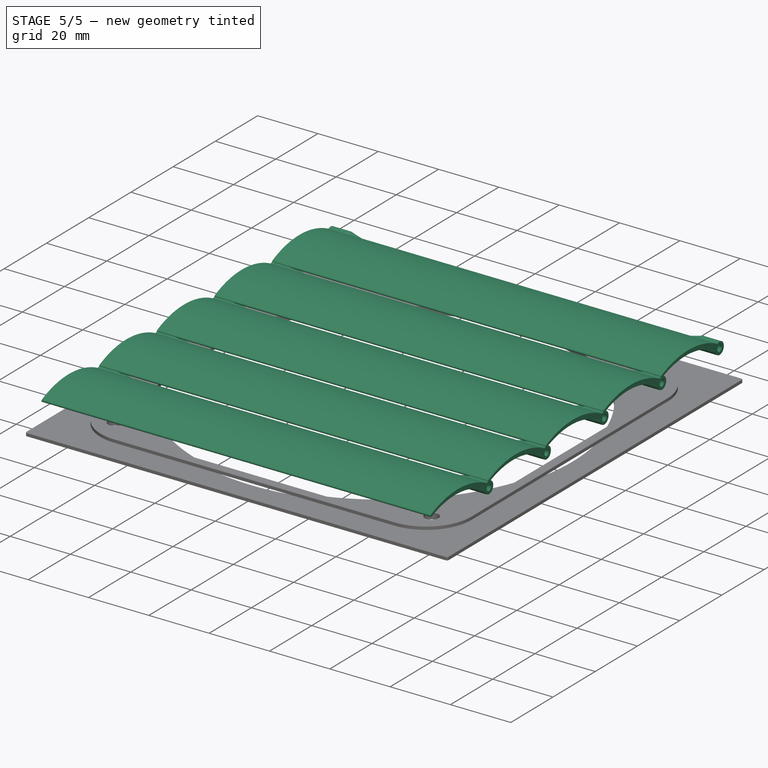
[diagram: stage 5 of 5 — iso view after this stage's code; geometry added in this stage tinted green]
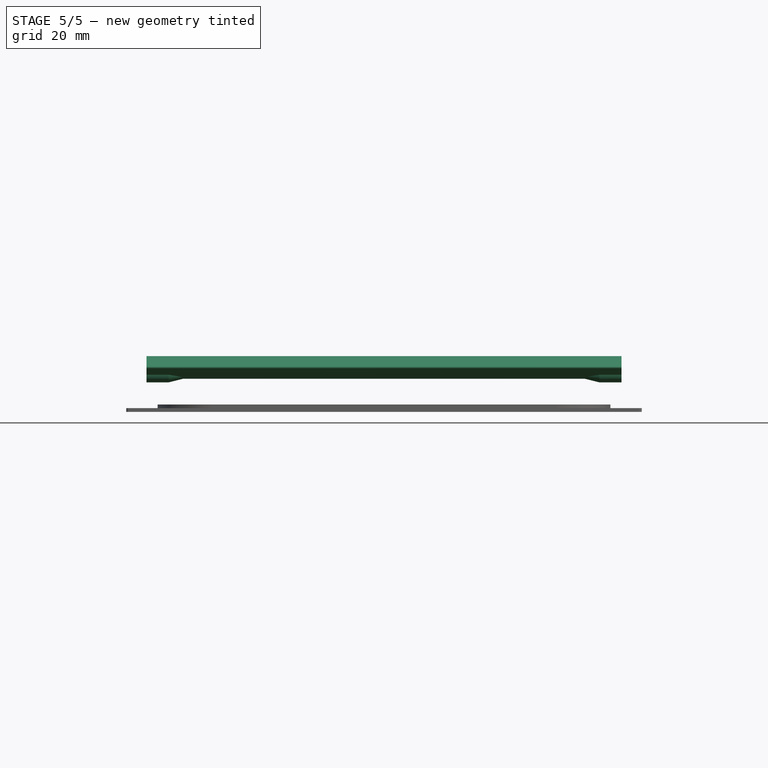
[diagram: stage 5 of 5 — front view after this stage's code; geometry added in this stage tinted green]
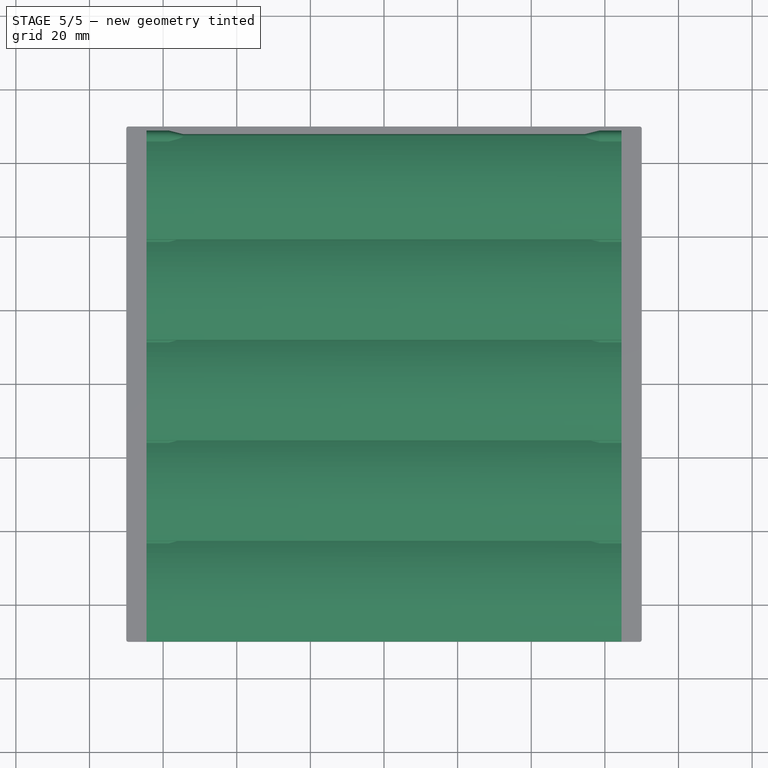
[diagram: stage 5 of 5 — top view after this stage's code; geometry added in this stage tinted green]
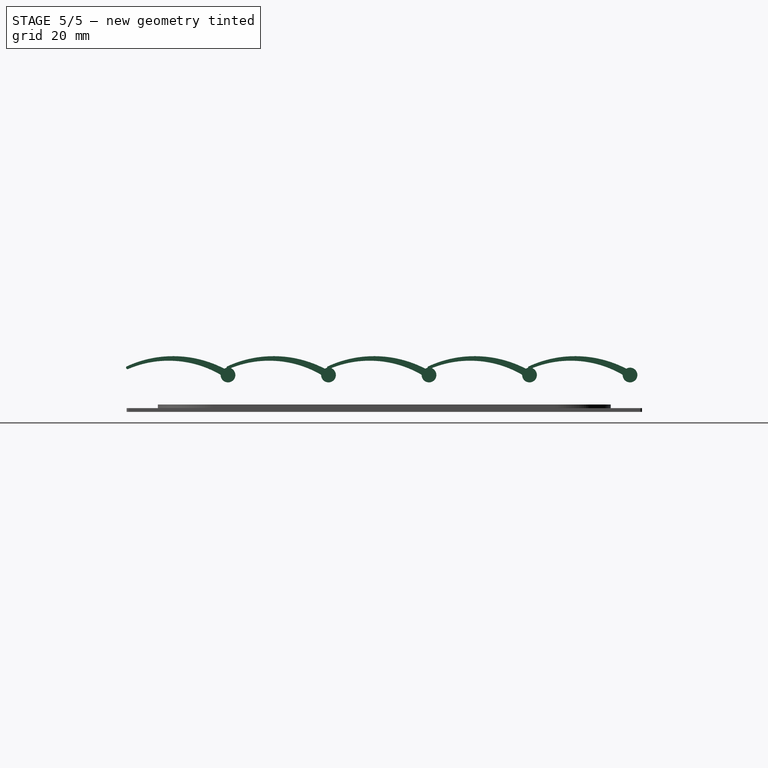
[diagram: stage 5 of 5 — right view after this stage's code; geometry added in this stage tinted green]
FEATURE [Sketcher::SketchObject] Sketch007
  ExternalGeometry = -> [ShapeBinder]
  FullyConstrained = true
  MapMode = 5
  Placement = pos=(64.5,-2.86e-14,2.51e-14) rot=(0.57735,0.57735,0.57735;2.0944rad)
  Support = -> [ShapeBinder]
  expr: Constraints[1] = <<dim>>.wing_filament_hole_d
  sketch-geometry (1):
    g0: Circle CenterX=68.25 CenterY=-2 CenterZ=0 NormalX=0 NormalY=0 NormalZ=1 AngleXU=0 Radius=1.05
  constraints (2):
    c: Coincident(g0,g-3)
    c: Diameter(g0) = 2.1
FEATURE [PartDesign::Pocket] Pocket
  BaseFeature = -> Mirrored
  Length = 6
  Length2 = 100
  Placement = pos=(0,0,0) rot=(0.57735,0.57735,0.57735;2.0944rad)
  Profile = -> Sketch007
  Type = 0
  expr: Length = <<dim>>.wing_filament_hole_h
FEATURE [PartDesign::ShapeBinder] ShapeBinder002
  Placement = pos=(0,0,0) rot=(0.57735,0.57735,0.57735;2.0944rad)
  Support = -> [Pocket]
  TraceSupport = false
FEATURE [Sketcher::SketchObject] Sketch008
  ExternalGeometry = -> [Pocket]
  FullyConstrained = true
  MapMode = 5
  Placement = pos=(-64.5,7.2e-15,-7.2e-15) rot=(-0.57735,-0.57735,0.57735;2.0944rad)
  Support = -> [ShapeBinder002]
  expr: Constraints[0] = <<dim>>.wing_filament_hole_d
  sketch-geometry (1):
    g0: Circle CenterX=68.25 CenterY=2 CenterZ=0 NormalX=0 NormalY=0 NormalZ=1 AngleXU=0 Radius=1.05
  constraints (2):
    c: Diameter(g0) = 2.1
    c: Coincident(g0,g-3)
FEATURE [PartDesign::Pocket] Pocket001
  BaseFeature = -> Pocket
  Length = 6
  Length2 = 100
  Placement = pos=(0,0,0) rot=(0.57735,0.57735,0.57735;2.0944rad)
  Profile = -> Sketch008
  Type = 0
  expr: Length = <<dim>>.wing_filament_hole_h
FEATURE [Part::FeaturePython] Array  label="flaps"  # Draft array (typed FeaturePython)
  Angle = 360
  ArrayType = 0
  Axis = (0,0,1)
  Base = -> Body001
  Center = (0,0,0)
  Count = 5
  ExpandArray = false
  Fuse = false
  IntervalAxis = (0,0,0)
  IntervalX = (100,0,0)
  IntervalY = (0,-27.3,0)
  IntervalZ = (0,0,100)
  NumberCircles = 3
  NumberPolar = 5
  NumberX = 1
  NumberY = 5
  NumberZ = 1
  PlacementList = 5 placements: arithmetic series from (0,-1.5,7) step (0,-27.3,0) to (0,-110.7,7)
  RadialDistance = 50
  ScaleList = (5) [(1,1,1),(1,1,1),(1,1,1),(1,1,1),(1,1,1)]
  Symmetry = 1
  TangentialDistance = 25
  expr: .IntervalY.y = -<<dim>>.wing_h
  expr: NumberY = <<dim>>.num_wings
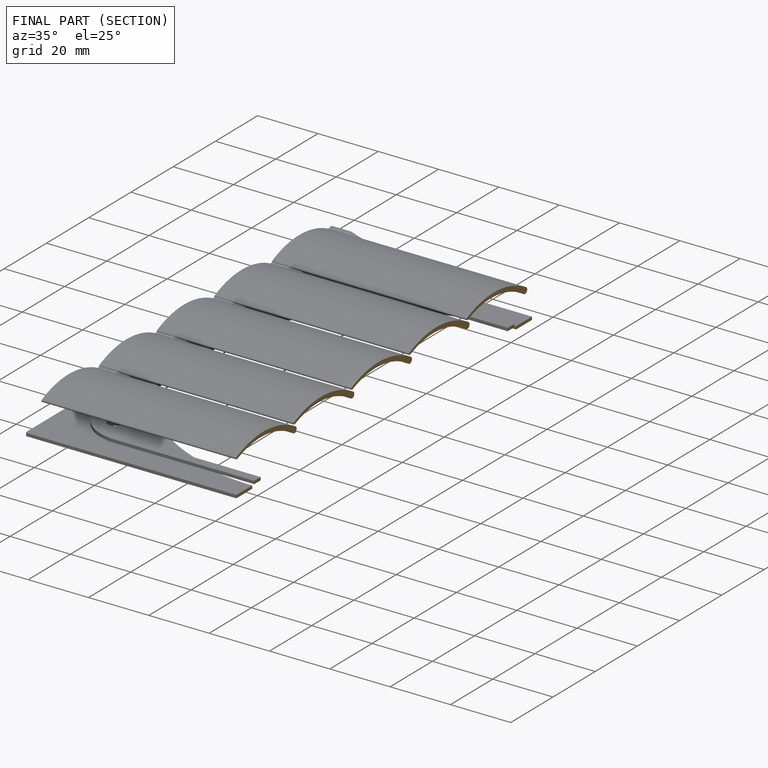
[diagram: finished part — half-section view (interior)]
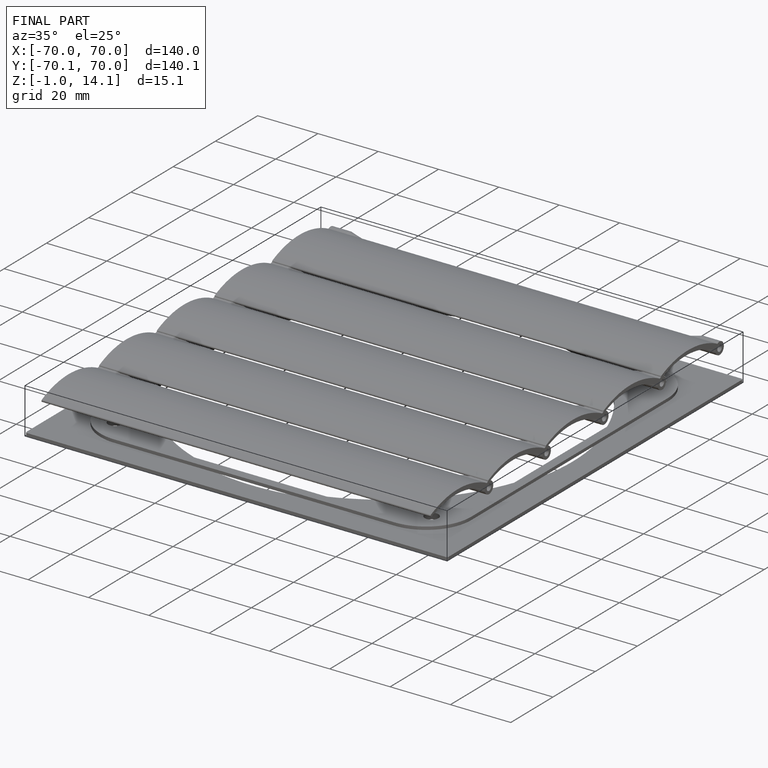
[diagram: finished part — iso view with bounding-box wireframe]
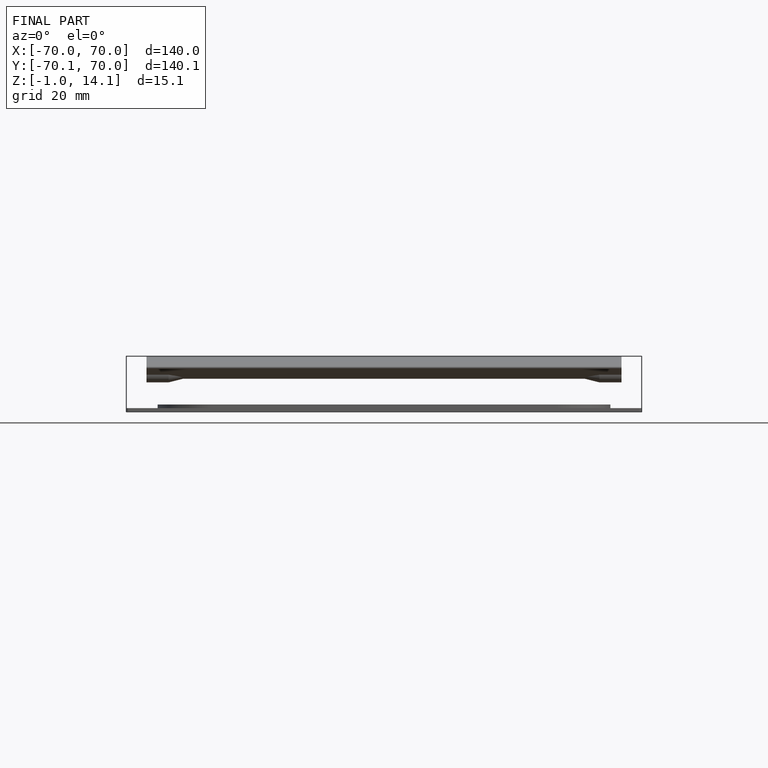
[diagram: finished part — front view with bounding-box wireframe]
